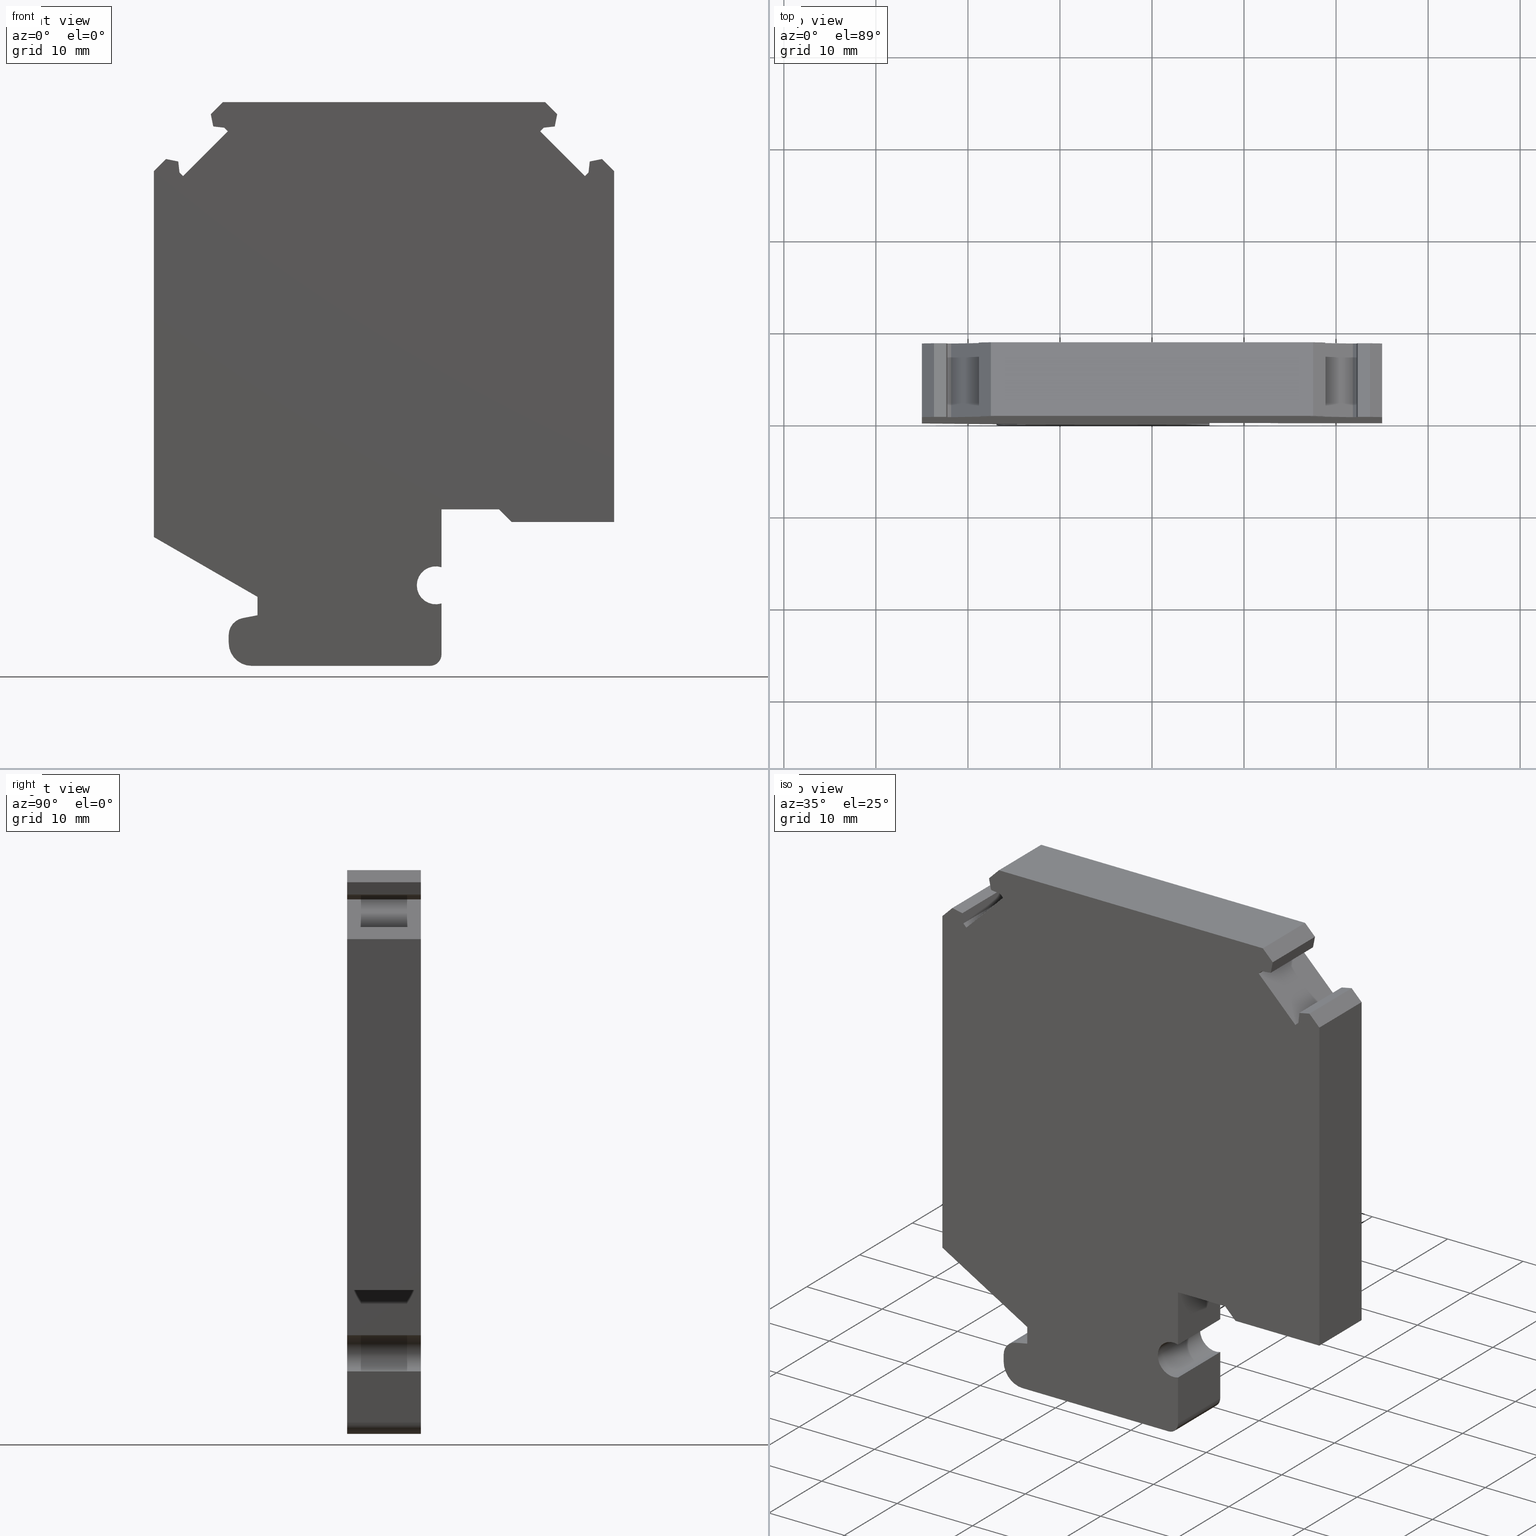
[diagram: canonical four-view strip — front | top / right | iso, engineering-drawing reading convention]
A machine part, canonical four-view strip (front | top / right | iso — engineering-drawing reading convention). The complete STEP part file that produces these views, byte-faithful:
ISO-10303-21;
HEADER;
/* Generated by software containing ST-Developer
 * from STEP Tools, Inc. (www.steptools.com) 
 */
/* OPTION: strings as raw bytes, not using required /X/ escapes */

FILE_DESCRIPTION(
/* description */ ('Unknown'),
/* implementation_level */ '2;1');

FILE_NAME(
/* name */ 'CST6WS',
/* time_stamp */ '2016-12-02T14:00:21+06:00',
/* author */ ('Unknown'),
/* organization */ ('Unknown'),
/* preprocessor_version */ 'ST-DEVELOPER v16',
/* originating_system */ 'DEX',
/* authorisation */ $);

FILE_SCHEMA (('AUTOMOTIVE_DESIGN {1 0 10303 214 3 1 1}'));
ENDSEC;

DATA;
#10=PROPERTY_DEFINITION_REPRESENTATION(#14,#12);
#11=PROPERTY_DEFINITION_REPRESENTATION(#15,#13);
#12=REPRESENTATION('',(#16),#1251);
#13=REPRESENTATION('',(#17),#1251);
#14=PROPERTY_DEFINITION('pmi validation property','',#1256);
#15=PROPERTY_DEFINITION('pmi validation property','',#1256);
#16=VALUE_REPRESENTATION_ITEM('number of annotations',COUNT_MEASURE(0.));
#17=VALUE_REPRESENTATION_ITEM('number of views',COUNT_MEASURE(0.));
#18=SHAPE_REPRESENTATION_RELATIONSHIP('','',#785,#19);
#19=ADVANCED_BREP_SHAPE_REPRESENTATION('',(#783),#1251);
#20=CIRCLE('',#804,2.0625);
#21=CIRCLE('',#805,2.0625);
#22=CIRCLE('',#808,1.25000000000003);
#23=CIRCLE('',#809,1.25000000000003);
#24=CIRCLE('',#812,2.49999999999994);
#25=CIRCLE('',#813,2.49999999999994);
#26=CIRCLE('',#816,1.87500000000003);
#27=CIRCLE('',#817,1.87500000000003);
#28=CIRCLE('',#830,0.124999999999993);
#29=CIRCLE('',#831,0.124999999999993);
#30=CYLINDRICAL_SURFACE('',#803,2.0625);
#31=CYLINDRICAL_SURFACE('',#807,1.25000000000003);
#32=CYLINDRICAL_SURFACE('',#811,2.49999999999994);
#33=CYLINDRICAL_SURFACE('',#815,1.87500000000003);
#34=CYLINDRICAL_SURFACE('',#829,0.124999999999993);
#35=ORIENTED_EDGE('',*,*,#251,.T.);
#36=ORIENTED_EDGE('',*,*,#252,.F.);
#37=ORIENTED_EDGE('',*,*,#253,.F.);
#38=ORIENTED_EDGE('',*,*,#254,.T.);
#39=ORIENTED_EDGE('',*,*,#255,.T.);
#40=ORIENTED_EDGE('',*,*,#256,.F.);
#41=ORIENTED_EDGE('',*,*,#257,.F.);
#42=ORIENTED_EDGE('',*,*,#252,.T.);
#43=ORIENTED_EDGE('',*,*,#258,.T.);
#44=ORIENTED_EDGE('',*,*,#259,.F.);
#45=ORIENTED_EDGE('',*,*,#260,.F.);
#46=ORIENTED_EDGE('',*,*,#256,.T.);
#47=ORIENTED_EDGE('',*,*,#261,.T.);
#48=ORIENTED_EDGE('',*,*,#262,.F.);
#49=ORIENTED_EDGE('',*,*,#263,.F.);
#50=ORIENTED_EDGE('',*,*,#259,.T.);
#51=ORIENTED_EDGE('',*,*,#264,.T.);
#52=ORIENTED_EDGE('',*,*,#265,.F.);
#53=ORIENTED_EDGE('',*,*,#266,.F.);
#54=ORIENTED_EDGE('',*,*,#262,.T.);
#55=ORIENTED_EDGE('',*,*,#267,.T.);
#56=ORIENTED_EDGE('',*,*,#268,.F.);
#57=ORIENTED_EDGE('',*,*,#269,.F.);
#58=ORIENTED_EDGE('',*,*,#265,.T.);
#59=ORIENTED_EDGE('',*,*,#270,.T.);
#60=ORIENTED_EDGE('',*,*,#271,.F.);
#61=ORIENTED_EDGE('',*,*,#272,.F.);
#62=ORIENTED_EDGE('',*,*,#268,.T.);
#63=ORIENTED_EDGE('',*,*,#273,.T.);
#64=ORIENTED_EDGE('',*,*,#274,.F.);
#65=ORIENTED_EDGE('',*,*,#275,.F.);
#66=ORIENTED_EDGE('',*,*,#271,.T.);
#67=ORIENTED_EDGE('',*,*,#276,.T.);
#68=ORIENTED_EDGE('',*,*,#277,.F.);
#69=ORIENTED_EDGE('',*,*,#278,.F.);
#70=ORIENTED_EDGE('',*,*,#274,.T.);
#71=ORIENTED_EDGE('',*,*,#279,.T.);
#72=ORIENTED_EDGE('',*,*,#280,.F.);
#73=ORIENTED_EDGE('',*,*,#281,.F.);
#74=ORIENTED_EDGE('',*,*,#277,.T.);
#75=ORIENTED_EDGE('',*,*,#282,.T.);
#76=ORIENTED_EDGE('',*,*,#283,.F.);
#77=ORIENTED_EDGE('',*,*,#284,.F.);
#78=ORIENTED_EDGE('',*,*,#280,.T.);
#79=ORIENTED_EDGE('',*,*,#285,.T.);
#80=ORIENTED_EDGE('',*,*,#286,.F.);
#81=ORIENTED_EDGE('',*,*,#287,.F.);
#82=ORIENTED_EDGE('',*,*,#283,.T.);
#83=ORIENTED_EDGE('',*,*,#288,.T.);
#84=ORIENTED_EDGE('',*,*,#289,.F.);
#85=ORIENTED_EDGE('',*,*,#290,.F.);
#86=ORIENTED_EDGE('',*,*,#286,.T.);
#87=ORIENTED_EDGE('',*,*,#291,.T.);
#88=ORIENTED_EDGE('',*,*,#292,.F.);
#89=ORIENTED_EDGE('',*,*,#293,.F.);
#90=ORIENTED_EDGE('',*,*,#289,.T.);
#91=ORIENTED_EDGE('',*,*,#294,.T.);
#92=ORIENTED_EDGE('',*,*,#295,.F.);
#93=ORIENTED_EDGE('',*,*,#296,.F.);
#94=ORIENTED_EDGE('',*,*,#292,.T.);
#95=ORIENTED_EDGE('',*,*,#297,.T.);
#96=ORIENTED_EDGE('',*,*,#298,.F.);
#97=ORIENTED_EDGE('',*,*,#299,.F.);
#98=ORIENTED_EDGE('',*,*,#295,.T.);
#99=ORIENTED_EDGE('',*,*,#300,.T.);
#100=ORIENTED_EDGE('',*,*,#301,.F.);
#101=ORIENTED_EDGE('',*,*,#302,.F.);
#102=ORIENTED_EDGE('',*,*,#298,.T.);
#103=ORIENTED_EDGE('',*,*,#303,.T.);
#104=ORIENTED_EDGE('',*,*,#304,.F.);
#105=ORIENTED_EDGE('',*,*,#305,.F.);
#106=ORIENTED_EDGE('',*,*,#301,.T.);
#107=ORIENTED_EDGE('',*,*,#306,.T.);
#108=ORIENTED_EDGE('',*,*,#307,.F.);
#109=ORIENTED_EDGE('',*,*,#308,.F.);
#110=ORIENTED_EDGE('',*,*,#304,.T.);
#111=ORIENTED_EDGE('',*,*,#309,.T.);
#112=ORIENTED_EDGE('',*,*,#310,.F.);
#113=ORIENTED_EDGE('',*,*,#311,.F.);
#114=ORIENTED_EDGE('',*,*,#307,.T.);
#115=ORIENTED_EDGE('',*,*,#312,.T.);
#116=ORIENTED_EDGE('',*,*,#313,.F.);
#117=ORIENTED_EDGE('',*,*,#314,.F.);
#118=ORIENTED_EDGE('',*,*,#310,.T.);
#119=ORIENTED_EDGE('',*,*,#315,.T.);
#120=ORIENTED_EDGE('',*,*,#316,.F.);
#121=ORIENTED_EDGE('',*,*,#317,.F.);
#122=ORIENTED_EDGE('',*,*,#313,.T.);
#123=ORIENTED_EDGE('',*,*,#318,.T.);
#124=ORIENTED_EDGE('',*,*,#319,.F.);
#125=ORIENTED_EDGE('',*,*,#320,.F.);
#126=ORIENTED_EDGE('',*,*,#316,.T.);
#127=ORIENTED_EDGE('',*,*,#321,.T.);
#128=ORIENTED_EDGE('',*,*,#322,.F.);
#129=ORIENTED_EDGE('',*,*,#323,.F.);
#130=ORIENTED_EDGE('',*,*,#319,.T.);
#131=ORIENTED_EDGE('',*,*,#324,.T.);
#132=ORIENTED_EDGE('',*,*,#325,.F.);
#133=ORIENTED_EDGE('',*,*,#326,.F.);
#134=ORIENTED_EDGE('',*,*,#322,.T.);
#135=ORIENTED_EDGE('',*,*,#327,.T.);
#136=ORIENTED_EDGE('',*,*,#328,.F.);
#137=ORIENTED_EDGE('',*,*,#329,.F.);
#138=ORIENTED_EDGE('',*,*,#325,.T.);
#139=ORIENTED_EDGE('',*,*,#330,.T.);
#140=ORIENTED_EDGE('',*,*,#331,.F.);
#141=ORIENTED_EDGE('',*,*,#332,.F.);
#142=ORIENTED_EDGE('',*,*,#328,.T.);
#143=ORIENTED_EDGE('',*,*,#333,.T.);
#144=ORIENTED_EDGE('',*,*,#334,.F.);
#145=ORIENTED_EDGE('',*,*,#335,.F.);
#146=ORIENTED_EDGE('',*,*,#331,.T.);
#147=ORIENTED_EDGE('',*,*,#336,.T.);
#148=ORIENTED_EDGE('',*,*,#337,.F.);
#149=ORIENTED_EDGE('',*,*,#338,.F.);
#150=ORIENTED_EDGE('',*,*,#334,.T.);
#151=ORIENTED_EDGE('',*,*,#339,.T.);
#152=ORIENTED_EDGE('',*,*,#340,.F.);
#153=ORIENTED_EDGE('',*,*,#341,.F.);
#154=ORIENTED_EDGE('',*,*,#337,.T.);
#155=ORIENTED_EDGE('',*,*,#342,.T.);
#156=ORIENTED_EDGE('',*,*,#343,.F.);
#157=ORIENTED_EDGE('',*,*,#344,.F.);
#158=ORIENTED_EDGE('',*,*,#340,.T.);
#159=ORIENTED_EDGE('',*,*,#345,.T.);
#160=ORIENTED_EDGE('',*,*,#346,.F.);
#161=ORIENTED_EDGE('',*,*,#347,.F.);
#162=ORIENTED_EDGE('',*,*,#343,.T.);
#163=ORIENTED_EDGE('',*,*,#348,.T.);
#164=ORIENTED_EDGE('',*,*,#349,.F.);
#165=ORIENTED_EDGE('',*,*,#350,.F.);
#166=ORIENTED_EDGE('',*,*,#346,.T.);
#167=ORIENTED_EDGE('',*,*,#351,.T.);
#168=ORIENTED_EDGE('',*,*,#352,.F.);
#169=ORIENTED_EDGE('',*,*,#353,.F.);
#170=ORIENTED_EDGE('',*,*,#349,.T.);
#171=ORIENTED_EDGE('',*,*,#354,.T.);
#172=ORIENTED_EDGE('',*,*,#355,.F.);
#173=ORIENTED_EDGE('',*,*,#356,.F.);
#174=ORIENTED_EDGE('',*,*,#352,.T.);
#175=ORIENTED_EDGE('',*,*,#357,.T.);
#176=ORIENTED_EDGE('',*,*,#254,.F.);
#177=ORIENTED_EDGE('',*,*,#358,.F.);
#178=ORIENTED_EDGE('',*,*,#355,.T.);
#179=ORIENTED_EDGE('',*,*,#253,.T.);
#180=ORIENTED_EDGE('',*,*,#257,.T.);
#181=ORIENTED_EDGE('',*,*,#260,.T.);
#182=ORIENTED_EDGE('',*,*,#263,.T.);
#183=ORIENTED_EDGE('',*,*,#266,.T.);
#184=ORIENTED_EDGE('',*,*,#269,.T.);
#185=ORIENTED_EDGE('',*,*,#272,.T.);
#186=ORIENTED_EDGE('',*,*,#275,.T.);
#187=ORIENTED_EDGE('',*,*,#278,.T.);
#188=ORIENTED_EDGE('',*,*,#281,.T.);
#189=ORIENTED_EDGE('',*,*,#284,.T.);
#190=ORIENTED_EDGE('',*,*,#287,.T.);
#191=ORIENTED_EDGE('',*,*,#290,.T.);
#192=ORIENTED_EDGE('',*,*,#293,.T.);
#193=ORIENTED_EDGE('',*,*,#296,.T.);
#194=ORIENTED_EDGE('',*,*,#299,.T.);
#195=ORIENTED_EDGE('',*,*,#302,.T.);
#196=ORIENTED_EDGE('',*,*,#305,.T.);
#197=ORIENTED_EDGE('',*,*,#308,.T.);
#198=ORIENTED_EDGE('',*,*,#311,.T.);
#199=ORIENTED_EDGE('',*,*,#314,.T.);
#200=ORIENTED_EDGE('',*,*,#317,.T.);
#201=ORIENTED_EDGE('',*,*,#320,.T.);
#202=ORIENTED_EDGE('',*,*,#323,.T.);
#203=ORIENTED_EDGE('',*,*,#326,.T.);
#204=ORIENTED_EDGE('',*,*,#329,.T.);
#205=ORIENTED_EDGE('',*,*,#332,.T.);
#206=ORIENTED_EDGE('',*,*,#335,.T.);
#207=ORIENTED_EDGE('',*,*,#338,.T.);
#208=ORIENTED_EDGE('',*,*,#341,.T.);
#209=ORIENTED_EDGE('',*,*,#344,.T.);
#210=ORIENTED_EDGE('',*,*,#347,.T.);
#211=ORIENTED_EDGE('',*,*,#350,.T.);
#212=ORIENTED_EDGE('',*,*,#353,.T.);
#213=ORIENTED_EDGE('',*,*,#356,.T.);
#214=ORIENTED_EDGE('',*,*,#358,.T.);
#215=ORIENTED_EDGE('',*,*,#251,.F.);
#216=ORIENTED_EDGE('',*,*,#357,.F.);
#217=ORIENTED_EDGE('',*,*,#354,.F.);
#218=ORIENTED_EDGE('',*,*,#351,.F.);
#219=ORIENTED_EDGE('',*,*,#348,.F.);
#220=ORIENTED_EDGE('',*,*,#345,.F.);
#221=ORIENTED_EDGE('',*,*,#342,.F.);
#222=ORIENTED_EDGE('',*,*,#339,.F.);
#223=ORIENTED_EDGE('',*,*,#336,.F.);
#224=ORIENTED_EDGE('',*,*,#333,.F.);
#225=ORIENTED_EDGE('',*,*,#330,.F.);
#226=ORIENTED_EDGE('',*,*,#327,.F.);
#227=ORIENTED_EDGE('',*,*,#324,.F.);
#228=ORIENTED_EDGE('',*,*,#321,.F.);
#229=ORIENTED_EDGE('',*,*,#318,.F.);
#230=ORIENTED_EDGE('',*,*,#315,.F.);
#231=ORIENTED_EDGE('',*,*,#312,.F.);
#232=ORIENTED_EDGE('',*,*,#309,.F.);
#233=ORIENTED_EDGE('',*,*,#306,.F.);
#234=ORIENTED_EDGE('',*,*,#303,.F.);
#235=ORIENTED_EDGE('',*,*,#300,.F.);
#236=ORIENTED_EDGE('',*,*,#297,.F.);
#237=ORIENTED_EDGE('',*,*,#294,.F.);
#238=ORIENTED_EDGE('',*,*,#291,.F.);
#239=ORIENTED_EDGE('',*,*,#288,.F.);
#240=ORIENTED_EDGE('',*,*,#285,.F.);
#241=ORIENTED_EDGE('',*,*,#282,.F.);
#242=ORIENTED_EDGE('',*,*,#279,.F.);
#243=ORIENTED_EDGE('',*,*,#276,.F.);
#244=ORIENTED_EDGE('',*,*,#273,.F.);
#245=ORIENTED_EDGE('',*,*,#270,.F.);
#246=ORIENTED_EDGE('',*,*,#267,.F.);
#247=ORIENTED_EDGE('',*,*,#264,.F.);
#248=ORIENTED_EDGE('',*,*,#261,.F.);
#249=ORIENTED_EDGE('',*,*,#258,.F.);
#250=ORIENTED_EDGE('',*,*,#255,.F.);
#251=EDGE_CURVE('',#359,#360,#431,.T.);
#252=EDGE_CURVE('',#361,#360,#432,.T.);
#253=EDGE_CURVE('',#362,#361,#433,.T.);
#254=EDGE_CURVE('',#362,#359,#434,.T.);
#255=EDGE_CURVE('',#360,#363,#435,.T.);
#256=EDGE_CURVE('',#364,#363,#436,.T.);
#257=EDGE_CURVE('',#361,#364,#437,.T.);
#258=EDGE_CURVE('',#363,#365,#438,.T.);
#259=EDGE_CURVE('',#366,#365,#439,.T.);
#260=EDGE_CURVE('',#364,#366,#440,.T.);
#261=EDGE_CURVE('',#365,#367,#441,.T.);
#262=EDGE_CURVE('',#368,#367,#442,.T.);
#263=EDGE_CURVE('',#366,#368,#443,.T.);
#264=EDGE_CURVE('',#367,#369,#444,.T.);
#265=EDGE_CURVE('',#370,#369,#445,.T.);
#266=EDGE_CURVE('',#368,#370,#446,.T.);
#267=EDGE_CURVE('',#369,#371,#447,.T.);
#268=EDGE_CURVE('',#372,#371,#448,.T.);
#269=EDGE_CURVE('',#370,#372,#449,.T.);
#270=EDGE_CURVE('',#371,#373,#450,.T.);
#271=EDGE_CURVE('',#374,#373,#451,.T.);
#272=EDGE_CURVE('',#372,#374,#452,.T.);
#273=EDGE_CURVE('',#373,#375,#453,.T.);
#274=EDGE_CURVE('',#376,#375,#454,.T.);
#275=EDGE_CURVE('',#374,#376,#455,.T.);
#276=EDGE_CURVE('',#375,#377,#456,.T.);
#277=EDGE_CURVE('',#378,#377,#457,.T.);
#278=EDGE_CURVE('',#376,#378,#458,.T.);
#279=EDGE_CURVE('',#377,#379,#459,.T.);
#280=EDGE_CURVE('',#380,#379,#460,.T.);
#281=EDGE_CURVE('',#378,#380,#461,.T.);
#282=EDGE_CURVE('',#379,#381,#462,.T.);
#283=EDGE_CURVE('',#382,#381,#463,.T.);
#284=EDGE_CURVE('',#380,#382,#464,.T.);
#285=EDGE_CURVE('',#381,#383,#465,.T.);
#286=EDGE_CURVE('',#384,#383,#466,.T.);
#287=EDGE_CURVE('',#382,#384,#467,.T.);
#288=EDGE_CURVE('',#383,#385,#468,.T.);
#289=EDGE_CURVE('',#386,#385,#469,.T.);
#290=EDGE_CURVE('',#384,#386,#470,.T.);
#291=EDGE_CURVE('',#385,#387,#471,.T.);
#292=EDGE_CURVE('',#388,#387,#472,.T.);
#293=EDGE_CURVE('',#386,#388,#473,.T.);
#294=EDGE_CURVE('',#387,#389,#474,.T.);
#295=EDGE_CURVE('',#390,#389,#475,.T.);
#296=EDGE_CURVE('',#388,#390,#476,.T.);
#297=EDGE_CURVE('',#389,#391,#477,.T.);
#298=EDGE_CURVE('',#392,#391,#478,.T.);
#299=EDGE_CURVE('',#390,#392,#479,.T.);
#300=EDGE_CURVE('',#391,#393,#20,.T.);
#301=EDGE_CURVE('',#394,#393,#480,.T.);
#302=EDGE_CURVE('',#392,#394,#21,.T.);
#303=EDGE_CURVE('',#393,#395,#481,.T.);
#304=EDGE_CURVE('',#396,#395,#482,.T.);
#305=EDGE_CURVE('',#394,#396,#483,.T.);
#306=EDGE_CURVE('',#395,#397,#22,.T.);
#307=EDGE_CURVE('',#398,#397,#484,.T.);
#308=EDGE_CURVE('',#396,#398,#23,.T.);
#309=EDGE_CURVE('',#397,#399,#485,.T.);
#310=EDGE_CURVE('',#400,#399,#486,.T.);
#311=EDGE_CURVE('',#398,#400,#487,.T.);
#312=EDGE_CURVE('',#399,#401,#24,.T.);
#313=EDGE_CURVE('',#402,#401,#488,.T.);
#314=EDGE_CURVE('',#400,#402,#25,.T.);
#315=EDGE_CURVE('',#401,#403,#489,.T.);
#316=EDGE_CURVE('',#404,#403,#490,.T.);
#317=EDGE_CURVE('',#402,#404,#491,.T.);
#318=EDGE_CURVE('',#403,#405,#26,.T.);
#319=EDGE_CURVE('',#406,#405,#492,.T.);
#320=EDGE_CURVE('',#404,#406,#27,.T.);
#321=EDGE_CURVE('',#405,#407,#493,.T.);
#322=EDGE_CURVE('',#408,#407,#494,.T.);
#323=EDGE_CURVE('',#406,#408,#495,.T.);
#324=EDGE_CURVE('',#407,#409,#496,.T.);
#325=EDGE_CURVE('',#410,#409,#497,.T.);
#326=EDGE_CURVE('',#408,#410,#498,.T.);
#327=EDGE_CURVE('',#409,#411,#499,.T.);
#328=EDGE_CURVE('',#412,#411,#500,.T.);
#329=EDGE_CURVE('',#410,#412,#501,.T.);
#330=EDGE_CURVE('',#411,#413,#502,.T.);
#331=EDGE_CURVE('',#414,#413,#503,.T.);
#332=EDGE_CURVE('',#412,#414,#504,.T.);
#333=EDGE_CURVE('',#413,#415,#505,.T.);
#334=EDGE_CURVE('',#416,#415,#506,.T.);
#335=EDGE_CURVE('',#414,#416,#507,.T.);
#336=EDGE_CURVE('',#415,#417,#508,.T.);
#337=EDGE_CURVE('',#418,#417,#509,.T.);
#338=EDGE_CURVE('',#416,#418,#510,.T.);
#339=EDGE_CURVE('',#417,#419,#511,.T.);
#340=EDGE_CURVE('',#420,#419,#512,.T.);
#341=EDGE_CURVE('',#418,#420,#513,.T.);
#342=EDGE_CURVE('',#419,#421,#514,.T.);
#343=EDGE_CURVE('',#422,#421,#515,.T.);
#344=EDGE_CURVE('',#420,#422,#516,.T.);
#345=EDGE_CURVE('',#421,#423,#517,.T.);
#346=EDGE_CURVE('',#424,#423,#518,.T.);
#347=EDGE_CURVE('',#422,#424,#519,.T.);
#348=EDGE_CURVE('',#423,#425,#520,.T.);
#349=EDGE_CURVE('',#426,#425,#521,.T.);
#350=EDGE_CURVE('',#424,#426,#522,.T.);
#351=EDGE_CURVE('',#425,#427,#523,.T.);
#352=EDGE_CURVE('',#428,#427,#524,.T.);
#353=EDGE_CURVE('',#426,#428,#525,.T.);
#354=EDGE_CURVE('',#427,#429,#28,.T.);
#355=EDGE_CURVE('',#430,#429,#526,.T.);
#356=EDGE_CURVE('',#428,#430,#29,.T.);
#357=EDGE_CURVE('',#429,#359,#527,.T.);
#358=EDGE_CURVE('',#430,#362,#528,.T.);
#359=VERTEX_POINT('',#1034);
#360=VERTEX_POINT('',#1035);
#361=VERTEX_POINT('',#1037);
#362=VERTEX_POINT('',#1039);
#363=VERTEX_POINT('',#1043);
#364=VERTEX_POINT('',#1045);
#365=VERTEX_POINT('',#1049);
#366=VERTEX_POINT('',#1051);
#367=VERTEX_POINT('',#1055);
#368=VERTEX_POINT('',#1057);
#369=VERTEX_POINT('',#1061);
#370=VERTEX_POINT('',#1063);
#371=VERTEX_POINT('',#1067);
#372=VERTEX_POINT('',#1069);
#373=VERTEX_POINT('',#1073);
#374=VERTEX_POINT('',#1075);
#375=VERTEX_POINT('',#1079);
#376=VERTEX_POINT('',#1081);
#377=VERTEX_POINT('',#1085);
#378=VERTEX_POINT('',#1087);
#379=VERTEX_POINT('',#1091);
#380=VERTEX_POINT('',#1093);
#381=VERTEX_POINT('',#1097);
#382=VERTEX_POINT('',#1099);
#383=VERTEX_POINT('',#1103);
#384=VERTEX_POINT('',#1105);
#385=VERTEX_POINT('',#1109);
#386=VERTEX_POINT('',#1111);
#387=VERTEX_POINT('',#1115);
#388=VERTEX_POINT('',#1117);
#389=VERTEX_POINT('',#1121);
#390=VERTEX_POINT('',#1123);
#391=VERTEX_POINT('',#1127);
#392=VERTEX_POINT('',#1129);
#393=VERTEX_POINT('',#1133);
#394=VERTEX_POINT('',#1135);
#395=VERTEX_POINT('',#1139);
#396=VERTEX_POINT('',#1141);
#397=VERTEX_POINT('',#1145);
#398=VERTEX_POINT('',#1147);
#399=VERTEX_POINT('',#1151);
#400=VERTEX_POINT('',#1153);
#401=VERTEX_POINT('',#1157);
#402=VERTEX_POINT('',#1159);
#403=VERTEX_POINT('',#1163);
#404=VERTEX_POINT('',#1165);
#405=VERTEX_POINT('',#1169);
#406=VERTEX_POINT('',#1171);
#407=VERTEX_POINT('',#1175);
#408=VERTEX_POINT('',#1177);
#409=VERTEX_POINT('',#1181);
#410=VERTEX_POINT('',#1183);
#411=VERTEX_POINT('',#1187);
#412=VERTEX_POINT('',#1189);
#413=VERTEX_POINT('',#1193);
#414=VERTEX_POINT('',#1195);
#415=VERTEX_POINT('',#1199);
#416=VERTEX_POINT('',#1201);
#417=VERTEX_POINT('',#1205);
#418=VERTEX_POINT('',#1207);
#419=VERTEX_POINT('',#1211);
#420=VERTEX_POINT('',#1213);
#421=VERTEX_POINT('',#1217);
#422=VERTEX_POINT('',#1219);
#423=VERTEX_POINT('',#1223);
#424=VERTEX_POINT('',#1225);
#425=VERTEX_POINT('',#1229);
#426=VERTEX_POINT('',#1231);
#427=VERTEX_POINT('',#1235);
#428=VERTEX_POINT('',#1237);
#429=VERTEX_POINT('',#1241);
#430=VERTEX_POINT('',#1243);
#431=LINE('',#1033,#529);
#432=LINE('',#1036,#530);
#433=LINE('',#1038,#531);
#434=LINE('',#1040,#532);
#435=LINE('',#1042,#533);
#436=LINE('',#1044,#534);
#437=LINE('',#1046,#535);
#438=LINE('',#1048,#536);
#439=LINE('',#1050,#537);
#440=LINE('',#1052,#538);
#441=LINE('',#1054,#539);
#442=LINE('',#1056,#540);
#443=LINE('',#1058,#541);
#444=LINE('',#1060,#542);
#445=LINE('',#1062,#543);
#446=LINE('',#1064,#544);
#447=LINE('',#1066,#545);
#448=LINE('',#1068,#546);
#449=LINE('',#1070,#547);
#450=LINE('',#1072,#548);
#451=LINE('',#1074,#549);
#452=LINE('',#1076,#550);
#453=LINE('',#1078,#551);
#454=LINE('',#1080,#552);
#455=LINE('',#1082,#553);
#456=LINE('',#1084,#554);
#457=LINE('',#1086,#555);
#458=LINE('',#1088,#556);
#459=LINE('',#1090,#557);
#460=LINE('',#1092,#558);
#461=LINE('',#1094,#559);
#462=LINE('',#1096,#560);
#463=LINE('',#1098,#561);
#464=LINE('',#1100,#562);
#465=LINE('',#1102,#563);
#466=LINE('',#1104,#564);
#467=LINE('',#1106,#565);
#468=LINE('',#1108,#566);
#469=LINE('',#1110,#567);
#470=LINE('',#1112,#568);
#471=LINE('',#1114,#569);
#472=LINE('',#1116,#570);
#473=LINE('',#1118,#571);
#474=LINE('',#1120,#572);
#475=LINE('',#1122,#573);
#476=LINE('',#1124,#574);
#477=LINE('',#1126,#575);
#478=LINE('',#1128,#576);
#479=LINE('',#1130,#577);
#480=LINE('',#1134,#578);
#481=LINE('',#1138,#579);
#482=LINE('',#1140,#580);
#483=LINE('',#1142,#581);
#484=LINE('',#1146,#582);
#485=LINE('',#1150,#583);
#486=LINE('',#1152,#584);
#487=LINE('',#1154,#585);
#488=LINE('',#1158,#586);
#489=LINE('',#1162,#587);
#490=LINE('',#1164,#588);
#491=LINE('',#1166,#589);
#492=LINE('',#1170,#590);
#493=LINE('',#1174,#591);
#494=LINE('',#1176,#592);
#495=LINE('',#1178,#593);
#496=LINE('',#1180,#594);
#497=LINE('',#1182,#595);
#498=LINE('',#1184,#596);
#499=LINE('',#1186,#597);
#500=LINE('',#1188,#598);
#501=LINE('',#1190,#599);
#502=LINE('',#1192,#600);
#503=LINE('',#1194,#601);
#504=LINE('',#1196,#602);
#505=LINE('',#1198,#603);
#506=LINE('',#1200,#604);
#507=LINE('',#1202,#605);
#508=LINE('',#1204,#606);
#509=LINE('',#1206,#607);
#510=LINE('',#1208,#608);
#511=LINE('',#1210,#609);
#512=LINE('',#1212,#610);
#513=LINE('',#1214,#611);
#514=LINE('',#1216,#612);
#515=LINE('',#1218,#613);
#516=LINE('',#1220,#614);
#517=LINE('',#1222,#615);
#518=LINE('',#1224,#616);
#519=LINE('',#1226,#617);
#520=LINE('',#1228,#618);
#521=LINE('',#1230,#619);
#522=LINE('',#1232,#620);
#523=LINE('',#1234,#621);
#524=LINE('',#1236,#622);
#525=LINE('',#1238,#623);
#526=LINE('',#1242,#624);
#527=LINE('',#1246,#625);
#528=LINE('',#1247,#626);
#529=VECTOR('',#839,1000.);
#530=VECTOR('',#840,1000.);
#531=VECTOR('',#841,1000.);
#532=VECTOR('',#842,1000.);
#533=VECTOR('',#845,1000.);
#534=VECTOR('',#846,1000.);
#535=VECTOR('',#847,1000.);
#536=VECTOR('',#850,1000.);
#537=VECTOR('',#851,1000.);
#538=VECTOR('',#852,1000.);
#539=VECTOR('',#855,1000.);
#540=VECTOR('',#856,1000.);
#541=VECTOR('',#857,1000.);
#542=VECTOR('',#860,1000.);
#543=VECTOR('',#861,1000.);
#544=VECTOR('',#862,1000.);
#545=VECTOR('',#865,1000.);
#546=VECTOR('',#866,1000.);
#547=VECTOR('',#867,1000.);
#548=VECTOR('',#870,1000.);
#549=VECTOR('',#871,1000.);
#550=VECTOR('',#872,1000.);
#551=VECTOR('',#875,1000.);
#552=VECTOR('',#876,1000.);
#553=VECTOR('',#877,1000.);
#554=VECTOR('',#880,1000.);
#555=VECTOR('',#881,1000.);
#556=VECTOR('',#882,1000.);
#557=VECTOR('',#885,1000.);
#558=VECTOR('',#886,1000.);
#559=VECTOR('',#887,1000.);
#560=VECTOR('',#890,1000.);
#561=VECTOR('',#891,1000.);
#562=VECTOR('',#892,1000.);
#563=VECTOR('',#895,1000.);
#564=VECTOR('',#896,1000.);
#565=VECTOR('',#897,1000.);
#566=VECTOR('',#900,1000.);
#567=VECTOR('',#901,1000.);
#568=VECTOR('',#902,1000.);
#569=VECTOR('',#905,1000.);
#570=VECTOR('',#906,1000.);
#571=VECTOR('',#907,1000.);
#572=VECTOR('',#910,1000.);
#573=VECTOR('',#911,1000.);
#574=VECTOR('',#912,1000.);
#575=VECTOR('',#915,1000.);
#576=VECTOR('',#916,1000.);
#577=VECTOR('',#917,1000.);
#578=VECTOR('',#922,1000.);
#579=VECTOR('',#927,1000.);
#580=VECTOR('',#928,1000.);
#581=VECTOR('',#929,1000.);
#582=VECTOR('',#934,1000.);
#583=VECTOR('',#939,1000.);
#584=VECTOR('',#940,1000.);
#585=VECTOR('',#941,1000.);
#586=VECTOR('',#946,1000.);
#587=VECTOR('',#951,1000.);
#588=VECTOR('',#952,1000.);
#589=VECTOR('',#953,1000.);
#590=VECTOR('',#958,1000.);
#591=VECTOR('',#963,1000.);
#592=VECTOR('',#964,1000.);
#593=VECTOR('',#965,1000.);
#594=VECTOR('',#968,1000.);
#595=VECTOR('',#969,1000.);
#596=VECTOR('',#970,1000.);
#597=VECTOR('',#973,1000.);
#598=VECTOR('',#974,1000.);
#599=VECTOR('',#975,1000.);
#600=VECTOR('',#978,1000.);
#601=VECTOR('',#979,1000.);
#602=VECTOR('',#980,1000.);
#603=VECTOR('',#983,1000.);
#604=VECTOR('',#984,1000.);
#605=VECTOR('',#985,1000.);
#606=VECTOR('',#988,1000.);
#607=VECTOR('',#989,1000.);
#608=VECTOR('',#990,1000.);
#609=VECTOR('',#993,1000.);
#610=VECTOR('',#994,1000.);
#611=VECTOR('',#995,1000.);
#612=VECTOR('',#998,1000.);
#613=VECTOR('',#999,1000.);
#614=VECTOR('',#1000,1000.);
#615=VECTOR('',#1003,1000.);
#616=VECTOR('',#1004,1000.);
#617=VECTOR('',#1005,1000.);
#618=VECTOR('',#1008,1000.);
#619=VECTOR('',#1009,1000.);
#620=VECTOR('',#1010,1000.);
#621=VECTOR('',#1013,1000.);
#622=VECTOR('',#1014,1000.);
#623=VECTOR('',#1015,1000.);
#624=VECTOR('',#1020,1000.);
#625=VECTOR('',#1025,1000.);
#626=VECTOR('',#1026,1000.);
#627=EDGE_LOOP('',(#35,#36,#37,#38));
#628=EDGE_LOOP('',(#39,#40,#41,#42));
#629=EDGE_LOOP('',(#43,#44,#45,#46));
#630=EDGE_LOOP('',(#47,#48,#49,#50));
#631=EDGE_LOOP('',(#51,#52,#53,#54));
#632=EDGE_LOOP('',(#55,#56,#57,#58));
#633=EDGE_LOOP('',(#59,#60,#61,#62));
#634=EDGE_LOOP('',(#63,#64,#65,#66));
#635=EDGE_LOOP('',(#67,#68,#69,#70));
#636=EDGE_LOOP('',(#71,#72,#73,#74));
#637=EDGE_LOOP('',(#75,#76,#77,#78));
#638=EDGE_LOOP('',(#79,#80,#81,#82));
#639=EDGE_LOOP('',(#83,#84,#85,#86));
#640=EDGE_LOOP('',(#87,#88,#89,#90));
#641=EDGE_LOOP('',(#91,#92,#93,#94));
#642=EDGE_LOOP('',(#95,#96,#97,#98));
#643=EDGE_LOOP('',(#99,#100,#101,#102));
#644=EDGE_LOOP('',(#103,#104,#105,#106));
#645=EDGE_LOOP('',(#107,#108,#109,#110));
#646=EDGE_LOOP('',(#111,#112,#113,#114));
#647=EDGE_LOOP('',(#115,#116,#117,#118));
#648=EDGE_LOOP('',(#119,#120,#121,#122));
#649=EDGE_LOOP('',(#123,#124,#125,#126));
#650=EDGE_LOOP('',(#127,#128,#129,#130));
#651=EDGE_LOOP('',(#131,#132,#133,#134));
#652=EDGE_LOOP('',(#135,#136,#137,#138));
#653=EDGE_LOOP('',(#139,#140,#141,#142));
#654=EDGE_LOOP('',(#143,#144,#145,#146));
#655=EDGE_LOOP('',(#147,#148,#149,#150));
#656=EDGE_LOOP('',(#151,#152,#153,#154));
#657=EDGE_LOOP('',(#155,#156,#157,#158));
#658=EDGE_LOOP('',(#159,#160,#161,#162));
#659=EDGE_LOOP('',(#163,#164,#165,#166));
#660=EDGE_LOOP('',(#167,#168,#169,#170));
#661=EDGE_LOOP('',(#171,#172,#173,#174));
#662=EDGE_LOOP('',(#175,#176,#177,#178));
#663=EDGE_LOOP('',(#179,#180,#181,#182,#183,#184,#185,#186,#187,#188,#189,
#190,#191,#192,#193,#194,#195,#196,#197,#198,#199,#200,#201,#202,#203,#204,
#205,#206,#207,#208,#209,#210,#211,#212,#213,#214));
#664=EDGE_LOOP('',(#215,#216,#217,#218,#219,#220,#221,#222,#223,#224,#225,
#226,#227,#228,#229,#230,#231,#232,#233,#234,#235,#236,#237,#238,#239,#240,
#241,#242,#243,#244,#245,#246,#247,#248,#249,#250));
#665=FACE_BOUND('',#627,.T.);
#666=FACE_BOUND('',#628,.T.);
#667=FACE_BOUND('',#629,.T.);
#668=FACE_BOUND('',#630,.T.);
#669=FACE_BOUND('',#631,.T.);
#670=FACE_BOUND('',#632,.T.);
#671=FACE_BOUND('',#633,.T.);
#672=FACE_BOUND('',#634,.T.);
#673=FACE_BOUND('',#635,.T.);
#674=FACE_BOUND('',#636,.T.);
#675=FACE_BOUND('',#637,.T.);
#676=FACE_BOUND('',#638,.T.);
#677=FACE_BOUND('',#639,.T.);
#678=FACE_BOUND('',#640,.T.);
#679=FACE_BOUND('',#641,.T.);
#680=FACE_BOUND('',#642,.T.);
#681=FACE_BOUND('',#643,.T.);
#682=FACE_BOUND('',#644,.T.);
#683=FACE_BOUND('',#645,.T.);
#684=FACE_BOUND('',#646,.T.);
#685=FACE_BOUND('',#647,.T.);
#686=FACE_BOUND('',#648,.T.);
#687=FACE_BOUND('',#649,.T.);
#688=FACE_BOUND('',#650,.T.);
#689=FACE_BOUND('',#651,.T.);
#690=FACE_BOUND('',#652,.T.);
#691=FACE_BOUND('',#653,.T.);
#692=FACE_BOUND('',#654,.T.);
#693=FACE_BOUND('',#655,.T.);
#694=FACE_BOUND('',#656,.T.);
#695=FACE_BOUND('',#657,.T.);
#696=FACE_BOUND('',#658,.T.);
#697=FACE_BOUND('',#659,.T.);
#698=FACE_BOUND('',#660,.T.);
#699=FACE_BOUND('',#661,.T.);
#700=FACE_BOUND('',#662,.T.);
#701=FACE_BOUND('',#663,.T.);
#702=FACE_BOUND('',#664,.T.);
#703=PLANE('',#787);
#704=PLANE('',#788);
#705=PLANE('',#789);
#706=PLANE('',#790);
#707=PLANE('',#791);
#708=PLANE('',#792);
#709=PLANE('',#793);
#710=PLANE('',#794);
#711=PLANE('',#795);
#712=PLANE('',#796);
#713=PLANE('',#797);
#714=PLANE('',#798);
#715=PLANE('',#799);
#716=PLANE('',#800);
#717=PLANE('',#801);
#718=PLANE('',#802);
#719=PLANE('',#806);
#720=PLANE('',#810);
#721=PLANE('',#814);
#722=PLANE('',#818);
#723=PLANE('',#819);
#724=PLANE('',#820);
#725=PLANE('',#821);
#726=PLANE('',#822);
#727=PLANE('',#823);
#728=PLANE('',#824);
#729=PLANE('',#825);
#730=PLANE('',#826);
#731=PLANE('',#827);
#732=PLANE('',#828);
#733=PLANE('',#832);
#734=PLANE('',#833);
#735=PLANE('',#834);
#736=ADVANCED_FACE('',(#665),#703,.F.);
#737=ADVANCED_FACE('',(#666),#704,.F.);
#738=ADVANCED_FACE('',(#667),#705,.F.);
#739=ADVANCED_FACE('',(#668),#706,.F.);
#740=ADVANCED_FACE('',(#669),#707,.F.);
#741=ADVANCED_FACE('',(#670),#708,.F.);
#742=ADVANCED_FACE('',(#671),#709,.F.);
#743=ADVANCED_FACE('',(#672),#710,.F.);
#744=ADVANCED_FACE('',(#673),#711,.F.);
#745=ADVANCED_FACE('',(#674),#712,.F.);
#746=ADVANCED_FACE('',(#675),#713,.F.);
#747=ADVANCED_FACE('',(#676),#714,.F.);
#748=ADVANCED_FACE('',(#677),#715,.F.);
#749=ADVANCED_FACE('',(#678),#716,.F.);
#750=ADVANCED_FACE('',(#679),#717,.F.);
#751=ADVANCED_FACE('',(#680),#718,.F.);
#752=ADVANCED_FACE('',(#681),#30,.F.);
#753=ADVANCED_FACE('',(#682),#719,.F.);
#754=ADVANCED_FACE('',(#683),#31,.T.);
#755=ADVANCED_FACE('',(#684),#720,.F.);
#756=ADVANCED_FACE('',(#685),#32,.T.);
#757=ADVANCED_FACE('',(#686),#721,.F.);
#758=ADVANCED_FACE('',(#687),#33,.T.);
#759=ADVANCED_FACE('',(#688),#722,.F.);
#760=ADVANCED_FACE('',(#689),#723,.F.);
#761=ADVANCED_FACE('',(#690),#724,.F.);
#762=ADVANCED_FACE('',(#691),#725,.F.);
#763=ADVANCED_FACE('',(#692),#726,.F.);
#764=ADVANCED_FACE('',(#693),#727,.F.);
#765=ADVANCED_FACE('',(#694),#728,.F.);
#766=ADVANCED_FACE('',(#695),#729,.F.);
#767=ADVANCED_FACE('',(#696),#730,.F.);
#768=ADVANCED_FACE('',(#697),#731,.F.);
#769=ADVANCED_FACE('',(#698),#732,.F.);
#770=ADVANCED_FACE('',(#699),#34,.T.);
#771=ADVANCED_FACE('',(#700),#733,.F.);
#772=ADVANCED_FACE('',(#701),#734,.F.);
#773=ADVANCED_FACE('',(#702),#735,.T.);
#774=CLOSED_SHELL('',(#736,#737,#738,#739,#740,#741,#742,#743,#744,#745,
#746,#747,#748,#749,#750,#751,#752,#753,#754,#755,#756,#757,#758,#759,#760,
#761,#762,#763,#764,#765,#766,#767,#768,#769,#770,#771,#772,#773));
#775=STYLED_ITEM('',(#776),#783);
#776=PRESENTATION_STYLE_ASSIGNMENT((#777));
#777=SURFACE_STYLE_USAGE(.BOTH.,#778);
#778=SURFACE_SIDE_STYLE('',(#779));
#779=SURFACE_STYLE_FILL_AREA(#780);
#780=FILL_AREA_STYLE('',(#781));
#781=FILL_AREA_STYLE_COLOUR('',#782);
#782=COLOUR_RGB('',0.752941191196442,0.752941191196442,0.752941191196442);
#783=MANIFOLD_SOLID_BREP('',#774);
#784=SHAPE_DEFINITION_REPRESENTATION(#1256,#785);
#785=SHAPE_REPRESENTATION('Part13',(#786),#1251);
#786=AXIS2_PLACEMENT_3D('',#1031,#835,#836);
#787=AXIS2_PLACEMENT_3D('',#1032,#837,#838);
#788=AXIS2_PLACEMENT_3D('',#1041,#843,#844);
#789=AXIS2_PLACEMENT_3D('',#1047,#848,#849);
#790=AXIS2_PLACEMENT_3D('',#1053,#853,#854);
#791=AXIS2_PLACEMENT_3D('',#1059,#858,#859);
#792=AXIS2_PLACEMENT_3D('',#1065,#863,#864);
#793=AXIS2_PLACEMENT_3D('',#1071,#868,#869);
#794=AXIS2_PLACEMENT_3D('',#1077,#873,#874);
#795=AXIS2_PLACEMENT_3D('',#1083,#878,#879);
#796=AXIS2_PLACEMENT_3D('',#1089,#883,#884);
#797=AXIS2_PLACEMENT_3D('',#1095,#888,#889);
#798=AXIS2_PLACEMENT_3D('',#1101,#893,#894);
#799=AXIS2_PLACEMENT_3D('',#1107,#898,#899);
#800=AXIS2_PLACEMENT_3D('',#1113,#903,#904);
#801=AXIS2_PLACEMENT_3D('',#1119,#908,#909);
#802=AXIS2_PLACEMENT_3D('',#1125,#913,#914);
#803=AXIS2_PLACEMENT_3D('',#1131,#918,#919);
#804=AXIS2_PLACEMENT_3D('',#1132,#920,#921);
#805=AXIS2_PLACEMENT_3D('',#1136,#923,#924);
#806=AXIS2_PLACEMENT_3D('',#1137,#925,#926);
#807=AXIS2_PLACEMENT_3D('',#1143,#930,#931);
#808=AXIS2_PLACEMENT_3D('',#1144,#932,#933);
#809=AXIS2_PLACEMENT_3D('',#1148,#935,#936);
#810=AXIS2_PLACEMENT_3D('',#1149,#937,#938);
#811=AXIS2_PLACEMENT_3D('',#1155,#942,#943);
#812=AXIS2_PLACEMENT_3D('',#1156,#944,#945);
#813=AXIS2_PLACEMENT_3D('',#1160,#947,#948);
#814=AXIS2_PLACEMENT_3D('',#1161,#949,#950);
#815=AXIS2_PLACEMENT_3D('',#1167,#954,#955);
#816=AXIS2_PLACEMENT_3D('',#1168,#956,#957);
#817=AXIS2_PLACEMENT_3D('',#1172,#959,#960);
#818=AXIS2_PLACEMENT_3D('',#1173,#961,#962);
#819=AXIS2_PLACEMENT_3D('',#1179,#966,#967);
#820=AXIS2_PLACEMENT_3D('',#1185,#971,#972);
#821=AXIS2_PLACEMENT_3D('',#1191,#976,#977);
#822=AXIS2_PLACEMENT_3D('',#1197,#981,#982);
#823=AXIS2_PLACEMENT_3D('',#1203,#986,#987);
#824=AXIS2_PLACEMENT_3D('',#1209,#991,#992);
#825=AXIS2_PLACEMENT_3D('',#1215,#996,#997);
#826=AXIS2_PLACEMENT_3D('',#1221,#1001,#1002);
#827=AXIS2_PLACEMENT_3D('',#1227,#1006,#1007);
#828=AXIS2_PLACEMENT_3D('',#1233,#1011,#1012);
#829=AXIS2_PLACEMENT_3D('',#1239,#1016,#1017);
#830=AXIS2_PLACEMENT_3D('',#1240,#1018,#1019);
#831=AXIS2_PLACEMENT_3D('',#1244,#1021,#1022);
#832=AXIS2_PLACEMENT_3D('',#1245,#1023,#1024);
#833=AXIS2_PLACEMENT_3D('',#1248,#1027,#1028);
#834=AXIS2_PLACEMENT_3D('',#1249,#1029,#1030);
#835=DIRECTION('',(0.,0.,1.));
#836=DIRECTION('',(1.,0.,0.));
#837=DIRECTION('',(0.707106781186558,0.,-0.707106781186537));
#838=DIRECTION('',(-0.707106781186537,0.,-0.707106781186558));
#839=DIRECTION('',(0.707106781186537,0.,0.707106781186558));
#840=DIRECTION('',(0.,-1.,0.));
#841=DIRECTION('',(0.707106781186537,0.,0.707106781186558));
#842=DIRECTION('',(0.,-1.,0.));
#843=DIRECTION('',(0.,0.,-1.));
#844=DIRECTION('',(-1.,0.,0.));
#845=DIRECTION('',(1.,0.,0.));
#846=DIRECTION('',(0.,-1.,0.));
#847=DIRECTION('',(1.,0.,0.));
#848=DIRECTION('',(-0.707106781186558,0.,-0.707106781186537));
#849=DIRECTION('',(-0.707106781186537,0.,0.707106781186558));
#850=DIRECTION('',(0.707106781186537,0.,-0.707106781186558));
#851=DIRECTION('',(0.,-1.,0.));
#852=DIRECTION('',(0.707106781186537,0.,-0.707106781186558));
#853=DIRECTION('',(-0.980580675690908,0.,0.196116135138248));
#854=DIRECTION('',(0.196116135138248,0.,0.980580675690908));
#855=DIRECTION('',(-0.196116135138248,0.,-0.980580675690907));
#856=DIRECTION('',(0.,-1.,0.));
#857=DIRECTION('',(-0.196116135138248,0.,-0.980580675690907));
#858=DIRECTION('',(-0.110431526074806,0.,0.993883734673623));
#859=DIRECTION('',(0.993883734673623,0.,0.110431526074806));
#860=DIRECTION('',(-0.993883734673623,0.,-0.110431526074806));
#861=DIRECTION('',(0.,-1.,0.));
#862=DIRECTION('',(-0.993883734673623,0.,-0.110431526074806));
#863=DIRECTION('',(-0.707106781186547,0.,0.707106781186547));
#864=DIRECTION('',(0.707106781186548,0.,0.707106781186548));
#865=DIRECTION('',(-0.707106781186548,0.,-0.707106781186548));
#866=DIRECTION('',(0.,-1.,0.));
#867=DIRECTION('',(-0.707106781186548,0.,-0.707106781186548));
#868=DIRECTION('',(-0.707106781186547,0.,-0.707106781186547));
#869=DIRECTION('',(-0.707106781186548,0.,0.707106781186548));
#870=DIRECTION('',(0.707106781186548,0.,-0.707106781186548));
#871=DIRECTION('',(0.,-1.,0.));
#872=DIRECTION('',(0.707106781186548,0.,-0.707106781186548));
#873=DIRECTION('',(0.707106781186547,0.,-0.707106781186547));
#874=DIRECTION('',(-0.707106781186548,0.,-0.707106781186548));
#875=DIRECTION('',(0.707106781186548,0.,0.707106781186548));
#876=DIRECTION('',(0.,-1.,0.));
#877=DIRECTION('',(0.707106781186548,0.,0.707106781186548));
#878=DIRECTION('',(0.993883734673605,0.,-0.110431526074968));
#879=DIRECTION('',(-0.110431526074968,0.,-0.993883734673605));
#880=DIRECTION('',(0.110431526074968,0.,0.993883734673605));
#881=DIRECTION('',(0.,-1.,0.));
#882=DIRECTION('',(0.110431526074968,0.,0.993883734673605));
#883=DIRECTION('',(0.196116135138089,0.,-0.980580675690939));
#884=DIRECTION('',(-0.980580675690939,0.,-0.196116135138089));
#885=DIRECTION('',(0.980580675690939,0.,0.196116135138089));
#886=DIRECTION('',(0.,-1.,0.));
#887=DIRECTION('',(0.980580675690939,0.,0.196116135138089));
#888=DIRECTION('',(-0.707106781186559,0.,-0.707106781186536));
#889=DIRECTION('',(-0.707106781186536,0.,0.707106781186559));
#890=DIRECTION('',(0.707106781186536,0.,-0.707106781186559));
#891=DIRECTION('',(0.,-1.,0.));
#892=DIRECTION('',(0.707106781186536,0.,-0.707106781186559));
#893=DIRECTION('',(-1.,0.,0.));
#894=DIRECTION('',(0.,0.,1.));
#895=DIRECTION('',(0.,0.,-1.));
#896=DIRECTION('',(0.,-1.,0.));
#897=DIRECTION('',(0.,0.,-1.));
#898=DIRECTION('',(0.,0.,1.));
#899=DIRECTION('',(1.,0.,0.));
#900=DIRECTION('',(-1.,0.,0.));
#901=DIRECTION('',(0.,-1.,0.));
#902=DIRECTION('',(-1.,0.,0.));
#903=DIRECTION('',(0.707106781186605,0.,0.70710678118649));
#904=DIRECTION('',(0.70710678118649,0.,-0.707106781186605));
#905=DIRECTION('',(-0.70710678118649,0.,0.707106781186605));
#906=DIRECTION('',(0.,-1.,0.));
#907=DIRECTION('',(-0.70710678118649,0.,0.707106781186605));
#908=DIRECTION('',(0.,0.,1.));
#909=DIRECTION('',(1.,0.,0.));
#910=DIRECTION('',(-1.,0.,0.));
#911=DIRECTION('',(0.,-1.,0.));
#912=DIRECTION('',(-1.,0.,0.));
#913=DIRECTION('',(-1.,0.,-3.5332233723862E-14));
#914=DIRECTION('',(-3.5332233723862E-14,0.,1.));
#915=DIRECTION('',(3.5332233723862E-14,0.,-1.));
#916=DIRECTION('',(0.,-1.,0.));
#917=DIRECTION('',(3.5332233723862E-14,0.,-1.));
#918=DIRECTION('',(0.,-1.,0.));
#919=DIRECTION('',(0.,0.,-1.));
#920=DIRECTION('',(0.,-1.,0.));
#921=DIRECTION('',(1.,0.,0.));
#922=DIRECTION('',(0.,-1.,0.));
#923=DIRECTION('',(0.,-1.,0.));
#924=DIRECTION('',(1.,0.,0.));
#925=DIRECTION('',(-1.,0.,1.56719733656737E-16));
#926=DIRECTION('',(1.56719733656737E-16,0.,1.));
#927=DIRECTION('',(-1.56719733656737E-16,0.,-1.));
#928=DIRECTION('',(0.,-1.,0.));
#929=DIRECTION('',(-1.56719733656737E-16,0.,-1.));
#930=DIRECTION('',(0.,-1.,0.));
#931=DIRECTION('',(0.,0.,-1.));
#932=DIRECTION('',(0.,1.,0.));
#933=DIRECTION('',(-1.,0.,0.));
#934=DIRECTION('',(0.,-1.,0.));
#935=DIRECTION('',(0.,1.,0.));
#936=DIRECTION('',(-1.,0.,0.));
#937=DIRECTION('',(0.,0.,1.));
#938=DIRECTION('',(1.,0.,0.));
#939=DIRECTION('',(-1.,0.,0.));
#940=DIRECTION('',(0.,-1.,0.));
#941=DIRECTION('',(-1.,0.,0.));
#942=DIRECTION('',(0.,-1.,0.));
#943=DIRECTION('',(0.,0.,-1.));
#944=DIRECTION('',(0.,1.,0.));
#945=DIRECTION('',(1.,0.,0.));
#946=DIRECTION('',(0.,-1.,0.));
#947=DIRECTION('',(0.,1.,0.));
#948=DIRECTION('',(1.,0.,0.));
#949=DIRECTION('',(1.,0.,-4.9157927549059E-14));
#950=DIRECTION('',(-4.9157927549059E-14,0.,-1.));
#951=DIRECTION('',(4.9157927549059E-14,0.,1.));
#952=DIRECTION('',(0.,-1.,0.));
#953=DIRECTION('',(4.9157927549059E-14,0.,1.));
#954=DIRECTION('',(0.,-1.,0.));
#955=DIRECTION('',(0.,0.,-1.));
#956=DIRECTION('',(0.,1.,0.));
#957=DIRECTION('',(1.,0.,0.));
#958=DIRECTION('',(0.,-1.,0.));
#959=DIRECTION('',(0.,1.,0.));
#960=DIRECTION('',(1.,0.,0.));
#961=DIRECTION('',(0.190808995376532,0.,-0.981627183447666));
#962=DIRECTION('',(-0.981627183447667,0.,-0.190808995376532));
#963=DIRECTION('',(0.981627183447667,0.,0.190808995376532));
#964=DIRECTION('',(0.,-1.,0.));
#965=DIRECTION('',(0.981627183447667,0.,0.190808995376532));
#966=DIRECTION('',(1.,0.,0.));
#967=DIRECTION('',(0.,0.,-1.));
#968=DIRECTION('',(0.,0.,1.));
#969=DIRECTION('',(0.,-1.,0.));
#970=DIRECTION('',(0.,0.,1.));
#971=DIRECTION('',(0.499999999999996,0.,0.866025403784441));
#972=DIRECTION('',(0.866025403784441,0.,-0.499999999999996));
#973=DIRECTION('',(-0.866025403784441,0.,0.499999999999996));
#974=DIRECTION('',(0.,-1.,0.));
#975=DIRECTION('',(-0.866025403784441,0.,0.499999999999996));
#976=DIRECTION('',(1.,0.,0.));
#977=DIRECTION('',(0.,0.,-1.));
#978=DIRECTION('',(0.,0.,1.));
#979=DIRECTION('',(0.,-1.,0.));
#980=DIRECTION('',(0.,0.,1.));
#981=DIRECTION('',(0.707106781186558,0.,-0.707106781186537));
#982=DIRECTION('',(-0.707106781186537,0.,-0.707106781186558));
#983=DIRECTION('',(0.707106781186537,0.,0.707106781186558));
#984=DIRECTION('',(0.,-1.,0.));
#985=DIRECTION('',(0.707106781186537,0.,0.707106781186558));
#986=DIRECTION('',(-0.196116135138247,0.,-0.980580675690908));
#987=DIRECTION('',(-0.980580675690908,0.,0.196116135138247));
#988=DIRECTION('',(0.980580675690908,0.,-0.196116135138247));
#989=DIRECTION('',(0.,-1.,0.));
#990=DIRECTION('',(0.980580675690908,0.,-0.196116135138247));
#991=DIRECTION('',(-0.993883734673603,0.,-0.110431526074989));
#992=DIRECTION('',(-0.110431526074989,0.,0.993883734673603));
#993=DIRECTION('',(0.110431526074989,0.,-0.993883734673603));
#994=DIRECTION('',(0.,-1.,0.));
#995=DIRECTION('',(0.110431526074989,0.,-0.993883734673603));
#996=DIRECTION('',(-0.707106781186547,0.,-0.707106781186547));
#997=DIRECTION('',(-0.707106781186548,0.,0.707106781186548));
#998=DIRECTION('',(0.707106781186548,0.,-0.707106781186548));
#999=DIRECTION('',(0.,-1.,0.));
#1000=DIRECTION('',(0.707106781186548,0.,-0.707106781186548));
#1001=DIRECTION('',(0.707106781186547,0.,-0.707106781186547));
#1002=DIRECTION('',(-0.707106781186548,0.,-0.707106781186548));
#1003=DIRECTION('',(0.707106781186548,0.,0.707106781186548));
#1004=DIRECTION('',(0.,-1.,0.));
#1005=DIRECTION('',(0.707106781186548,0.,0.707106781186548));
#1006=DIRECTION('',(0.707106781186547,0.,0.707106781186547));
#1007=DIRECTION('',(0.707106781186548,0.,-0.707106781186548));
#1008=DIRECTION('',(-0.707106781186548,0.,0.707106781186548));
#1009=DIRECTION('',(0.,-1.,0.));
#1010=DIRECTION('',(-0.707106781186548,0.,0.707106781186548));
#1011=DIRECTION('',(0.110431526074909,0.,0.993883734673612));
#1012=DIRECTION('',(0.993883734673612,0.,-0.110431526074909));
#1013=DIRECTION('',(-0.993883734673612,0.,0.110431526074909));
#1014=DIRECTION('',(0.,-1.,0.));
#1015=DIRECTION('',(-0.993883734673612,0.,0.110431526074909));
#1016=DIRECTION('',(0.,-1.,0.));
#1017=DIRECTION('',(0.,0.,-1.));
#1018=DIRECTION('',(0.,1.,0.));
#1019=DIRECTION('',(1.,0.,0.));
#1020=DIRECTION('',(0.,-1.,0.));
#1021=DIRECTION('',(0.,1.,0.));
#1022=DIRECTION('',(1.,0.,0.));
#1023=DIRECTION('',(0.9805806756909,0.,0.196116135138285));
#1024=DIRECTION('',(0.196116135138285,0.,-0.9805806756909));
#1025=DIRECTION('',(-0.196116135138285,0.,0.9805806756909));
#1026=DIRECTION('',(-0.196116135138285,0.,0.9805806756909));
#1027=DIRECTION('',(0.,-1.,0.));
#1028=DIRECTION('',(0.,0.,-1.));
#1029=DIRECTION('',(0.,-1.,0.));
#1030=DIRECTION('',(0.,0.,-1.));
#1031=CARTESIAN_POINT('',(0.,0.,0.));
#1032=CARTESIAN_POINT('',(-18.8193204396714,8.,28.3029805871675));
#1033=CARTESIAN_POINT('',(-18.8193204396714,0.,28.3029805871675));
#1034=CARTESIAN_POINT('',(-18.8193204396714,0.,28.3029805871675));
#1035=CARTESIAN_POINT('',(-17.5000000000001,0.,29.6223010268388));
#1036=CARTESIAN_POINT('',(-17.5000000000001,8.,29.6223010268388));
#1037=CARTESIAN_POINT('',(-17.5000000000001,8.,29.6223010268388));
#1038=CARTESIAN_POINT('',(-18.8193204396714,8.,28.3029805871675));
#1039=CARTESIAN_POINT('',(-18.8193204396714,8.,28.3029805871675));
#1040=CARTESIAN_POINT('',(-18.8193204396714,8.,28.3029805871675));
#1041=CARTESIAN_POINT('',(-17.5000000000001,8.,29.6223010268388));
#1042=CARTESIAN_POINT('',(-17.5000000000001,0.,29.6223010268388));
#1043=CARTESIAN_POINT('',(17.5000000000001,0.,29.6223010268388));
#1044=CARTESIAN_POINT('',(17.5000000000001,8.,29.6223010268388));
#1045=CARTESIAN_POINT('',(17.5000000000001,8.,29.6223010268388));
#1046=CARTESIAN_POINT('',(-17.5000000000001,8.,29.6223010268388));
#1047=CARTESIAN_POINT('',(17.5000000000001,8.,29.6223010268388));
#1048=CARTESIAN_POINT('',(17.5000000000001,0.,29.6223010268388));
#1049=CARTESIAN_POINT('',(18.8193204396712,0.,28.3029805871677));
#1050=CARTESIAN_POINT('',(18.8193204396712,8.,28.3029805871677));
#1051=CARTESIAN_POINT('',(18.8193204396712,8.,28.3029805871677));
#1052=CARTESIAN_POINT('',(17.5000000000001,8.,29.6223010268388));
#1053=CARTESIAN_POINT('',(18.8193204396712,8.,28.3029805871677));
#1054=CARTESIAN_POINT('',(18.8193204396712,0.,28.3029805871677));
#1055=CARTESIAN_POINT('',(18.5541553967261,0.,26.9771553724427));
#1056=CARTESIAN_POINT('',(18.5541553967261,8.,26.9771553724427));
#1057=CARTESIAN_POINT('',(18.5541553967261,8.,26.9771553724427));
#1058=CARTESIAN_POINT('',(18.8193204396712,8.,28.3029805871677));
#1059=CARTESIAN_POINT('',(18.5541553967261,8.,26.9771553724427));
#1060=CARTESIAN_POINT('',(18.5541553967261,0.,26.9771553724427));
#1061=CARTESIAN_POINT('',(17.360912703474,0.,26.8445728509703));
#1062=CARTESIAN_POINT('',(17.360912703474,8.,26.8445728509703));
#1063=CARTESIAN_POINT('',(17.360912703474,8.,26.8445728509703));
#1064=CARTESIAN_POINT('',(18.5541553967261,8.,26.9771553724427));
#1065=CARTESIAN_POINT('',(17.360912703474,8.,26.8445728509703));
#1066=CARTESIAN_POINT('',(17.360912703474,0.,26.8445728509703));
#1067=CARTESIAN_POINT('',(16.9631651390565,0.,26.4468252865528));
#1068=CARTESIAN_POINT('',(16.9631651390565,8.,26.4468252865528));
#1069=CARTESIAN_POINT('',(16.9631651390565,8.,26.4468252865528));
#1070=CARTESIAN_POINT('',(17.360912703474,8.,26.8445728509703));
#1071=CARTESIAN_POINT('',(16.9631651390565,8.,26.4468252865528));
#1072=CARTESIAN_POINT('',(16.9631651390565,0.,26.4468252865528));
#1073=CARTESIAN_POINT('',(21.8245242597139,0.,21.5854661658954));
#1074=CARTESIAN_POINT('',(21.8245242597139,8.,21.5854661658954));
#1075=CARTESIAN_POINT('',(21.8245242597139,8.,21.5854661658954));
#1076=CARTESIAN_POINT('',(16.9631651390565,8.,26.4468252865528));
#1077=CARTESIAN_POINT('',(21.8245242597139,8.,21.5854661658954));
#1078=CARTESIAN_POINT('',(21.8245242597139,0.,21.5854661658954));
#1079=CARTESIAN_POINT('',(22.2222718241314,0.,21.9832137303129));
#1080=CARTESIAN_POINT('',(22.2222718241314,8.,21.9832137303129));
#1081=CARTESIAN_POINT('',(22.2222718241314,8.,21.9832137303129));
#1082=CARTESIAN_POINT('',(21.8245242597139,8.,21.5854661658954));
#1083=CARTESIAN_POINT('',(22.2222718241314,8.,21.9832137303129));
#1084=CARTESIAN_POINT('',(22.2222718241314,0.,21.9832137303129));
#1085=CARTESIAN_POINT('',(22.354854345604,0.,23.1764564235652));
#1086=CARTESIAN_POINT('',(22.354854345604,8.,23.1764564235652));
#1087=CARTESIAN_POINT('',(22.354854345604,8.,23.1764564235652));
#1088=CARTESIAN_POINT('',(22.2222718241314,8.,21.9832137303129));
#1089=CARTESIAN_POINT('',(22.354854345604,8.,23.1764564235652));
#1090=CARTESIAN_POINT('',(22.354854345604,0.,23.1764564235652));
#1091=CARTESIAN_POINT('',(23.6806795603287,0.,23.44162146651));
#1092=CARTESIAN_POINT('',(23.6806795603287,8.,23.44162146651));
#1093=CARTESIAN_POINT('',(23.6806795603287,8.,23.44162146651));
#1094=CARTESIAN_POINT('',(22.354854345604,8.,23.1764564235652));
#1095=CARTESIAN_POINT('',(23.6806795603287,8.,23.4416214665101));
#1096=CARTESIAN_POINT('',(23.6806795603287,0.,23.4416214665101));
#1097=CARTESIAN_POINT('',(24.9999999999999,0.,22.1223010268388));
#1098=CARTESIAN_POINT('',(24.9999999999999,8.,22.1223010268388));
#1099=CARTESIAN_POINT('',(24.9999999999999,8.,22.1223010268388));
#1100=CARTESIAN_POINT('',(23.6806795603287,8.,23.4416214665101));
#1101=CARTESIAN_POINT('',(24.9999999999999,8.,22.1223010268388));
#1102=CARTESIAN_POINT('',(24.9999999999999,0.,22.1223010268388));
#1103=CARTESIAN_POINT('',(24.9999999999999,0.,-16.0026989731612));
#1104=CARTESIAN_POINT('',(24.9999999999999,8.,-16.0026989731612));
#1105=CARTESIAN_POINT('',(24.9999999999999,8.,-16.0026989731612));
#1106=CARTESIAN_POINT('',(24.9999999999999,8.,22.1223010268388));
#1107=CARTESIAN_POINT('',(24.9999999999999,8.,-16.0026989731612));
#1108=CARTESIAN_POINT('',(24.9999999999999,0.,-16.0026989731612));
#1109=CARTESIAN_POINT('',(13.8750000000001,0.,-16.0026989731612));
#1110=CARTESIAN_POINT('',(13.8750000000001,8.,-16.0026989731612));
#1111=CARTESIAN_POINT('',(13.8750000000001,8.,-16.0026989731612));
#1112=CARTESIAN_POINT('',(24.9999999999999,8.,-16.0026989731612));
#1113=CARTESIAN_POINT('',(13.8750000000001,8.,-16.0026989731612));
#1114=CARTESIAN_POINT('',(13.8750000000001,0.,-16.0026989731612));
#1115=CARTESIAN_POINT('',(12.5000000000002,0.,-14.6276989731611));
#1116=CARTESIAN_POINT('',(12.5000000000002,8.,-14.6276989731611));
#1117=CARTESIAN_POINT('',(12.5000000000002,8.,-14.6276989731611));
#1118=CARTESIAN_POINT('',(13.8750000000001,8.,-16.0026989731612));
#1119=CARTESIAN_POINT('',(12.5000000000002,8.,-14.6276989731611));
#1120=CARTESIAN_POINT('',(12.5000000000002,0.,-14.6276989731611));
#1121=CARTESIAN_POINT('',(6.24999999999987,0.,-14.6276989731611));
#1122=CARTESIAN_POINT('',(6.24999999999987,8.,-14.6276989731611));
#1123=CARTESIAN_POINT('',(6.24999999999987,8.,-14.6276989731611));
#1124=CARTESIAN_POINT('',(12.5000000000002,8.,-14.6276989731611));
#1125=CARTESIAN_POINT('',(6.24999999999987,8.,-14.6276989731611));
#1126=CARTESIAN_POINT('',(6.24999999999987,0.,-14.6276989731611));
#1127=CARTESIAN_POINT('',(6.25000000000009,0.,-20.9121758239714));
#1128=CARTESIAN_POINT('',(6.25000000000009,8.,-20.9121758239714));
#1129=CARTESIAN_POINT('',(6.25000000000009,8.,-20.9121758239714));
#1130=CARTESIAN_POINT('',(6.24999999999987,8.,-14.6276989731611));
#1131=CARTESIAN_POINT('',(5.62499999999999,8.,-22.8776989731612));
#1132=CARTESIAN_POINT('',(5.62499999999999,0.,-22.8776989731612));
#1133=CARTESIAN_POINT('',(6.25000000000009,0.,-24.8432221223507));
#1134=CARTESIAN_POINT('',(6.25000000000009,8.,-24.8432221223507));
#1135=CARTESIAN_POINT('',(6.25000000000009,8.,-24.8432221223507));
#1136=CARTESIAN_POINT('',(5.62499999999999,8.,-22.8776989731612));
#1137=CARTESIAN_POINT('',(6.25000000000009,8.,-24.8432221223507));
#1138=CARTESIAN_POINT('',(6.25000000000009,0.,-24.8432221223507));
#1139=CARTESIAN_POINT('',(6.25000000000009,0.,-30.3776989731612));
#1140=CARTESIAN_POINT('',(6.25000000000009,8.,-30.3776989731612));
#1141=CARTESIAN_POINT('',(6.25000000000009,8.,-30.3776989731612));
#1142=CARTESIAN_POINT('',(6.25000000000009,8.,-24.8432221223507));
#1143=CARTESIAN_POINT('',(4.99999999999989,8.,-30.3776989731612));
#1144=CARTESIAN_POINT('',(4.99999999999989,0.,-30.3776989731612));
#1145=CARTESIAN_POINT('',(4.99999999999989,0.,-31.6276989731613));
#1146=CARTESIAN_POINT('',(4.99999999999989,8.,-31.6276989731613));
#1147=CARTESIAN_POINT('',(4.99999999999989,8.,-31.6276989731613));
#1148=CARTESIAN_POINT('',(4.99999999999989,8.,-30.3776989731612));
#1149=CARTESIAN_POINT('',(4.99999999999989,8.,-31.6276989731612));
#1150=CARTESIAN_POINT('',(4.99999999999989,0.,-31.6276989731612));
#1151=CARTESIAN_POINT('',(-14.375,0.,-31.6276989731612));
#1152=CARTESIAN_POINT('',(-14.375,8.,-31.6276989731612));
#1153=CARTESIAN_POINT('',(-14.375,8.,-31.6276989731612));
#1154=CARTESIAN_POINT('',(4.99999999999989,8.,-31.6276989731612));
#1155=CARTESIAN_POINT('',(-14.375,8.,-29.1276989731613));
#1156=CARTESIAN_POINT('',(-14.375,0.,-29.1276989731613));
#1157=CARTESIAN_POINT('',(-16.875,0.,-29.1276989731613));
#1158=CARTESIAN_POINT('',(-16.875,8.,-29.1276989731613));
#1159=CARTESIAN_POINT('',(-16.875,8.,-29.1276989731613));
#1160=CARTESIAN_POINT('',(-14.375,8.,-29.1276989731613));
#1161=CARTESIAN_POINT('',(-16.8750000000002,8.,-29.1276989731613));
#1162=CARTESIAN_POINT('',(-16.8750000000002,0.,-29.1276989731613));
#1163=CARTESIAN_POINT('',(-16.8750000000002,0.,-28.2807681626243));
#1164=CARTESIAN_POINT('',(-16.8750000000002,8.,-28.2807681626243));
#1165=CARTESIAN_POINT('',(-16.8750000000002,8.,-28.2807681626243));
#1166=CARTESIAN_POINT('',(-16.8750000000002,8.,-29.1276989731613));
#1167=CARTESIAN_POINT('',(-15.0000000000001,8.,-28.2807681626243));
#1168=CARTESIAN_POINT('',(-15.0000000000001,0.,-28.2807681626243));
#1169=CARTESIAN_POINT('',(-15.3577668663312,0.,-26.4402171936599));
#1170=CARTESIAN_POINT('',(-15.3577668663312,8.,-26.4402171936599));
#1171=CARTESIAN_POINT('',(-15.3577668663312,8.,-26.4402171936599));
#1172=CARTESIAN_POINT('',(-15.0000000000001,8.,-28.2807681626243));
#1173=CARTESIAN_POINT('',(-15.3577668663312,8.,-26.44021719366));
#1174=CARTESIAN_POINT('',(-15.3577668663312,0.,-26.44021719366));
#1175=CARTESIAN_POINT('',(-13.7499999999999,0.,-26.1276989731611));
#1176=CARTESIAN_POINT('',(-13.7499999999999,8.,-26.1276989731611));
#1177=CARTESIAN_POINT('',(-13.7499999999999,8.,-26.1276989731611));
#1178=CARTESIAN_POINT('',(-15.3577668663312,8.,-26.44021719366));
#1179=CARTESIAN_POINT('',(-13.7499999999999,8.,-26.1276989731611));
#1180=CARTESIAN_POINT('',(-13.7499999999999,0.,-26.1276989731611));
#1181=CARTESIAN_POINT('',(-13.7499999999999,0.,-24.1276989731611));
#1182=CARTESIAN_POINT('',(-13.7499999999999,8.,-24.1276989731611));
#1183=CARTESIAN_POINT('',(-13.7499999999999,8.,-24.1276989731611));
#1184=CARTESIAN_POINT('',(-13.7499999999999,8.,-26.1276989731611));
#1185=CARTESIAN_POINT('',(-13.7499999999999,8.,-24.1276989731611));
#1186=CARTESIAN_POINT('',(-13.7499999999999,0.,-24.1276989731611));
#1187=CARTESIAN_POINT('',(-24.9999999999999,0.,-17.6325084447779));
#1188=CARTESIAN_POINT('',(-24.9999999999999,8.,-17.6325084447779));
#1189=CARTESIAN_POINT('',(-24.9999999999999,8.,-17.6325084447779));
#1190=CARTESIAN_POINT('',(-13.7499999999999,8.,-24.1276989731611));
#1191=CARTESIAN_POINT('',(-24.9999999999999,8.,-17.6325084447779));
#1192=CARTESIAN_POINT('',(-24.9999999999999,0.,-17.6325084447779));
#1193=CARTESIAN_POINT('',(-24.9999999999999,0.,22.1223010268388));
#1194=CARTESIAN_POINT('',(-24.9999999999999,8.,22.1223010268388));
#1195=CARTESIAN_POINT('',(-24.9999999999999,8.,22.1223010268388));
#1196=CARTESIAN_POINT('',(-24.9999999999999,8.,-17.6325084447779));
#1197=CARTESIAN_POINT('',(-24.9999999999999,8.,22.1223010268388));
#1198=CARTESIAN_POINT('',(-24.9999999999999,0.,22.1223010268388));
#1199=CARTESIAN_POINT('',(-23.6806795603287,0.,23.44162146651));
#1200=CARTESIAN_POINT('',(-23.6806795603287,8.,23.44162146651));
#1201=CARTESIAN_POINT('',(-23.6806795603287,8.,23.44162146651));
#1202=CARTESIAN_POINT('',(-24.9999999999999,8.,22.1223010268388));
#1203=CARTESIAN_POINT('',(-23.6806795603287,8.,23.44162146651));
#1204=CARTESIAN_POINT('',(-23.6806795603287,0.,23.44162146651));
#1205=CARTESIAN_POINT('',(-22.354854345604,0.,23.176456423565));
#1206=CARTESIAN_POINT('',(-22.354854345604,8.,23.176456423565));
#1207=CARTESIAN_POINT('',(-22.354854345604,8.,23.176456423565));
#1208=CARTESIAN_POINT('',(-23.6806795603287,8.,23.44162146651));
#1209=CARTESIAN_POINT('',(-22.354854345604,8.,23.176456423565));
#1210=CARTESIAN_POINT('',(-22.354854345604,0.,23.176456423565));
#1211=CARTESIAN_POINT('',(-22.2222718241314,0.,21.9832137303129));
#1212=CARTESIAN_POINT('',(-22.2222718241314,8.,21.9832137303129));
#1213=CARTESIAN_POINT('',(-22.2222718241314,8.,21.9832137303129));
#1214=CARTESIAN_POINT('',(-22.354854345604,8.,23.176456423565));
#1215=CARTESIAN_POINT('',(-22.2222718241314,8.,21.9832137303129));
#1216=CARTESIAN_POINT('',(-22.2222718241314,0.,21.9832137303129));
#1217=CARTESIAN_POINT('',(-21.8245242597139,0.,21.5854661658954));
#1218=CARTESIAN_POINT('',(-21.8245242597139,8.,21.5854661658954));
#1219=CARTESIAN_POINT('',(-21.8245242597139,8.,21.5854661658954));
#1220=CARTESIAN_POINT('',(-22.2222718241314,8.,21.9832137303129));
#1221=CARTESIAN_POINT('',(-21.8245242597139,8.,21.5854661658954));
#1222=CARTESIAN_POINT('',(-21.8245242597139,0.,21.5854661658954));
#1223=CARTESIAN_POINT('',(-16.9631651390565,0.,26.4468252865528));
#1224=CARTESIAN_POINT('',(-16.9631651390565,8.,26.4468252865528));
#1225=CARTESIAN_POINT('',(-16.9631651390565,8.,26.4468252865528));
#1226=CARTESIAN_POINT('',(-21.8245242597139,8.,21.5854661658954));
#1227=CARTESIAN_POINT('',(-16.9631651390565,8.,26.4468252865528));
#1228=CARTESIAN_POINT('',(-16.9631651390565,0.,26.4468252865528));
#1229=CARTESIAN_POINT('',(-17.360912703474,0.,26.8445728509703));
#1230=CARTESIAN_POINT('',(-17.360912703474,8.,26.8445728509703));
#1231=CARTESIAN_POINT('',(-17.360912703474,8.,26.8445728509703));
#1232=CARTESIAN_POINT('',(-16.9631651390565,8.,26.4468252865528));
#1233=CARTESIAN_POINT('',(-17.360912703474,8.,26.8445728509703));
#1234=CARTESIAN_POINT('',(-17.360912703474,0.,26.8445728509703));
#1235=CARTESIAN_POINT('',(-18.4633122054283,0.,26.9670616845209));
#1236=CARTESIAN_POINT('',(-18.4633122054283,8.,26.9670616845209));
#1237=CARTESIAN_POINT('',(-18.4633122054283,8.,26.9670616845209));
#1238=CARTESIAN_POINT('',(-17.360912703474,8.,26.8445728509703));
#1239=CARTESIAN_POINT('',(-18.449508264669,8.,27.0912971513551));
#1240=CARTESIAN_POINT('',(-18.449508264669,0.,27.0912971513551));
#1241=CARTESIAN_POINT('',(-18.5720808491303,0.,27.0667826344628));
#1242=CARTESIAN_POINT('',(-18.5720808491303,8.,27.0667826344628));
#1243=CARTESIAN_POINT('',(-18.5720808491303,8.,27.0667826344628));
#1244=CARTESIAN_POINT('',(-18.449508264669,8.,27.0912971513551));
#1245=CARTESIAN_POINT('',(-18.5720808491303,8.,27.0667826344628));
#1246=CARTESIAN_POINT('',(-18.5720808491303,0.,27.0667826344628));
#1247=CARTESIAN_POINT('',(-18.5720808491303,8.,27.0667826344628));
#1248=CARTESIAN_POINT('',(5.62499999999999,8.,-22.8776989731612));
#1249=CARTESIAN_POINT('',(5.62499999999999,0.,-22.8776989731612));
#1250=MECHANICAL_DESIGN_GEOMETRIC_PRESENTATION_REPRESENTATION('',(#775),
#1251);
#1251=(
GEOMETRIC_REPRESENTATION_CONTEXT(3)
GLOBAL_UNCERTAINTY_ASSIGNED_CONTEXT((#1252))
GLOBAL_UNIT_ASSIGNED_CONTEXT((#1255,#1254,#1253))
REPRESENTATION_CONTEXT('Part13','TOP_LEVEL_ASSEMBLY_PART')
);
#1252=UNCERTAINTY_MEASURE_WITH_UNIT(LENGTH_MEASURE(0.005),#1255,
'DISTANCE_ACCURACY_VALUE','Maximum Tolerance applied to model');
#1253=(
NAMED_UNIT(*)
SI_UNIT($,.STERADIAN.)
SOLID_ANGLE_UNIT()
);
#1254=(
NAMED_UNIT(*)
PLANE_ANGLE_UNIT()
SI_UNIT($,.RADIAN.)
);
#1255=(
LENGTH_UNIT()
NAMED_UNIT(*)
SI_UNIT(.MILLI.,.METRE.)
);
#1256=PRODUCT_DEFINITION_SHAPE('','',#1257);
#1257=PRODUCT_DEFINITION('','',#1259,#1258);
#1258=PRODUCT_DEFINITION_CONTEXT('',#1265,'design');
#1259=PRODUCT_DEFINITION_FORMATION_WITH_SPECIFIED_SOURCE('','',#1261,
 .NOT_KNOWN.);
#1260=PRODUCT_RELATED_PRODUCT_CATEGORY('','',(#1261));
#1261=PRODUCT('Part13','Part13','Part13',(#1263));
#1262=PRODUCT_CATEGORY('','');
#1263=PRODUCT_CONTEXT('',#1265,'mechanical');
#1264=APPLICATION_PROTOCOL_DEFINITION('international standard',
'automotive_design',2010,#1265);
#1265=APPLICATION_CONTEXT(
'core data for automotive mechanical design processes');
ENDSEC;
END-ISO-10303-21;
